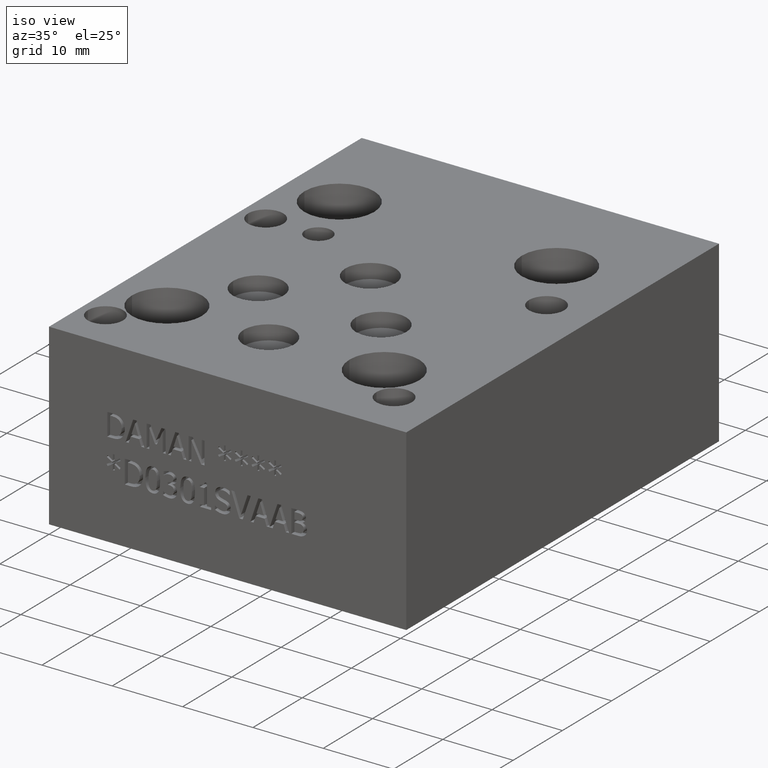
[diagram: clean part render]
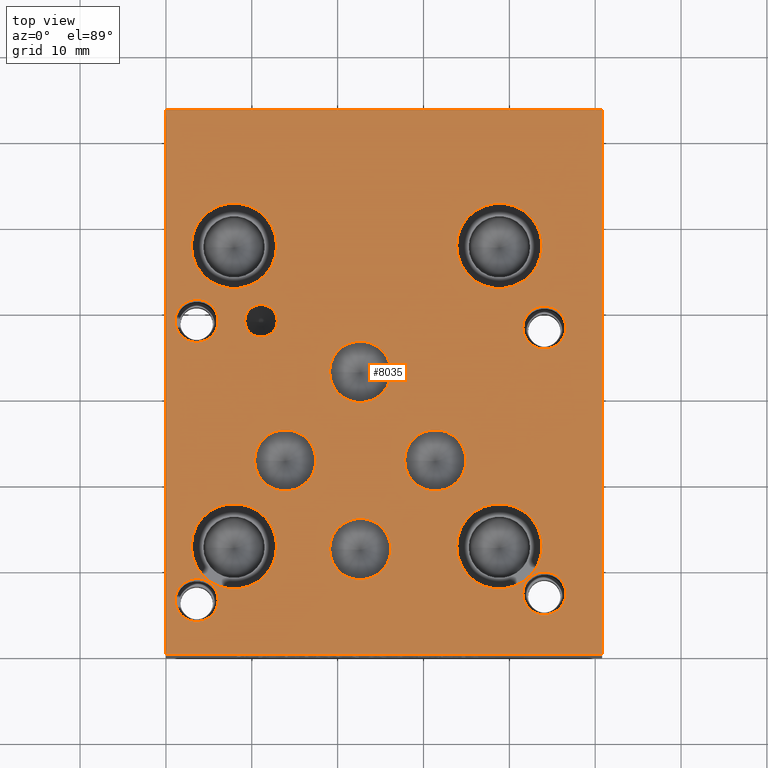
[diagram: tour spotlight — one face highlighted and labeled with its STEP entity id]
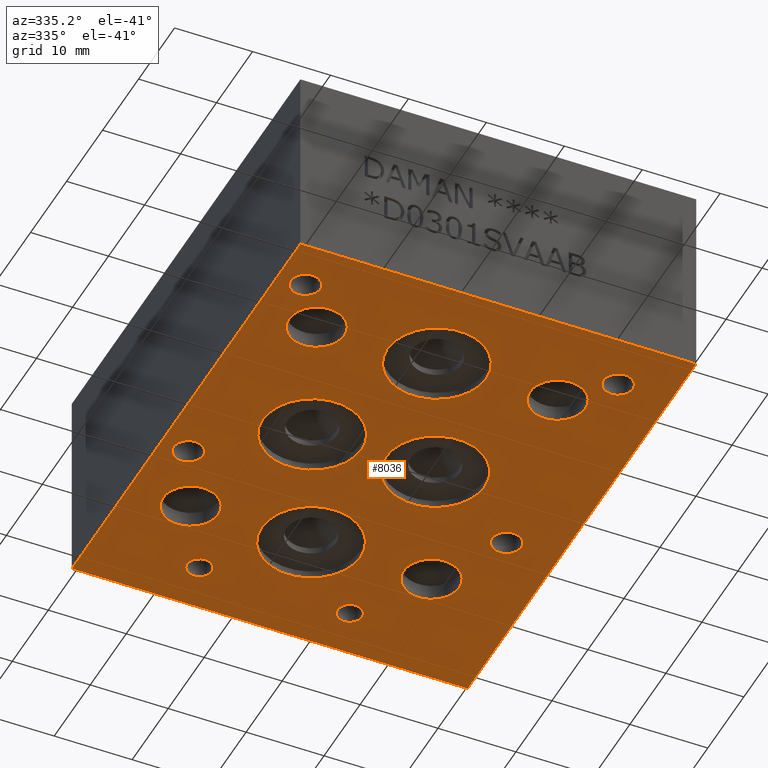
[diagram: tour spotlight — one face highlighted and labeled with its STEP entity id]
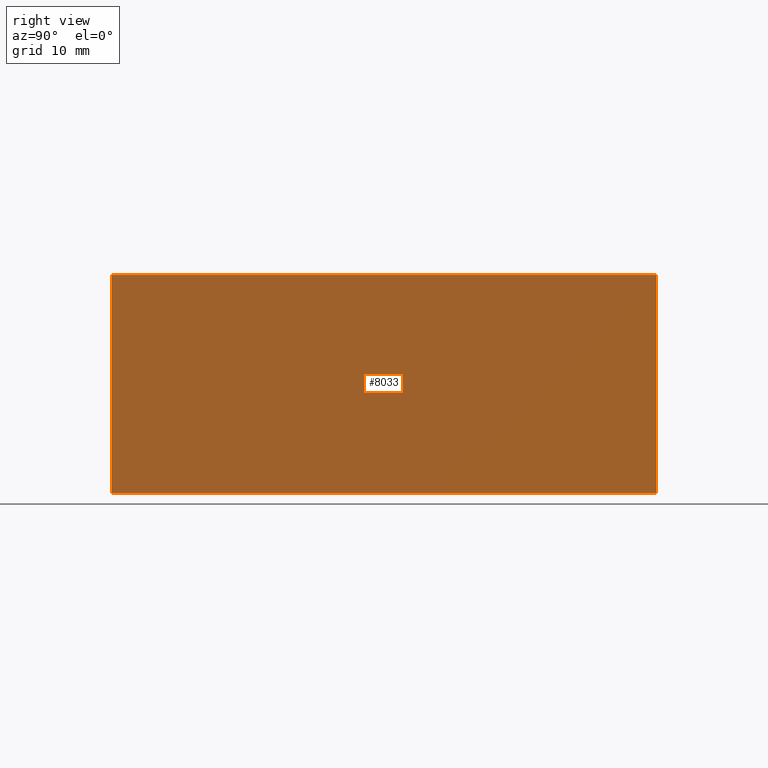
[diagram: tour spotlight — one face highlighted and labeled with its STEP entity id]
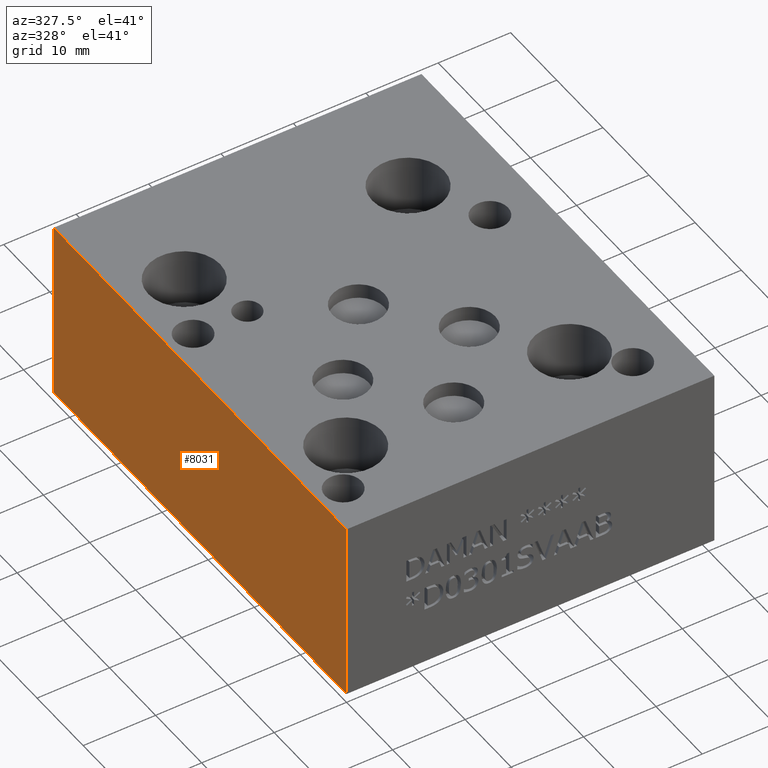
[diagram: tour spotlight — one face highlighted and labeled with its STEP entity id]
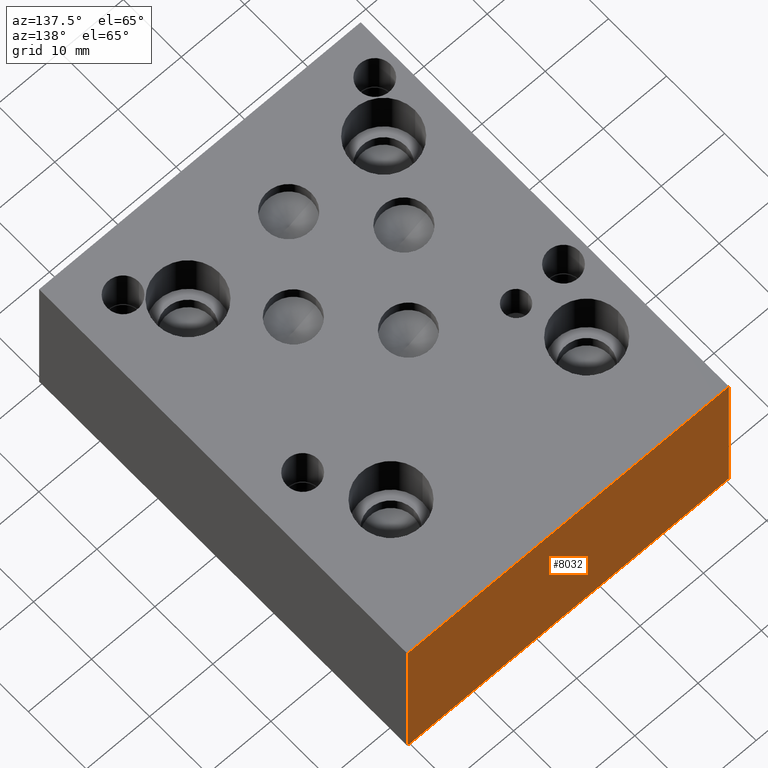
[diagram: tour spotlight — one face highlighted and labeled with its STEP entity id]
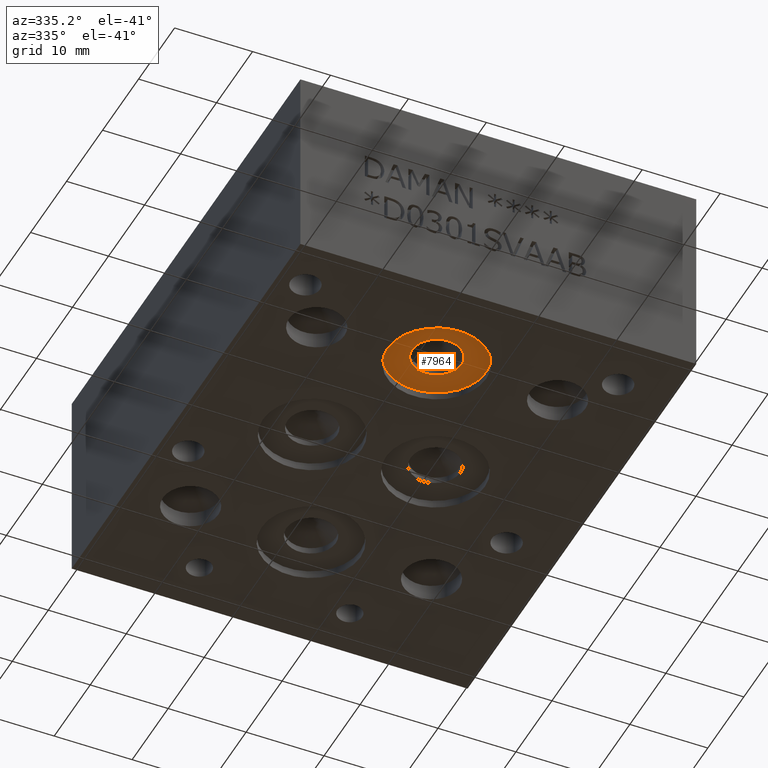
[diagram: tour spotlight — one face highlighted and labeled with its STEP entity id]
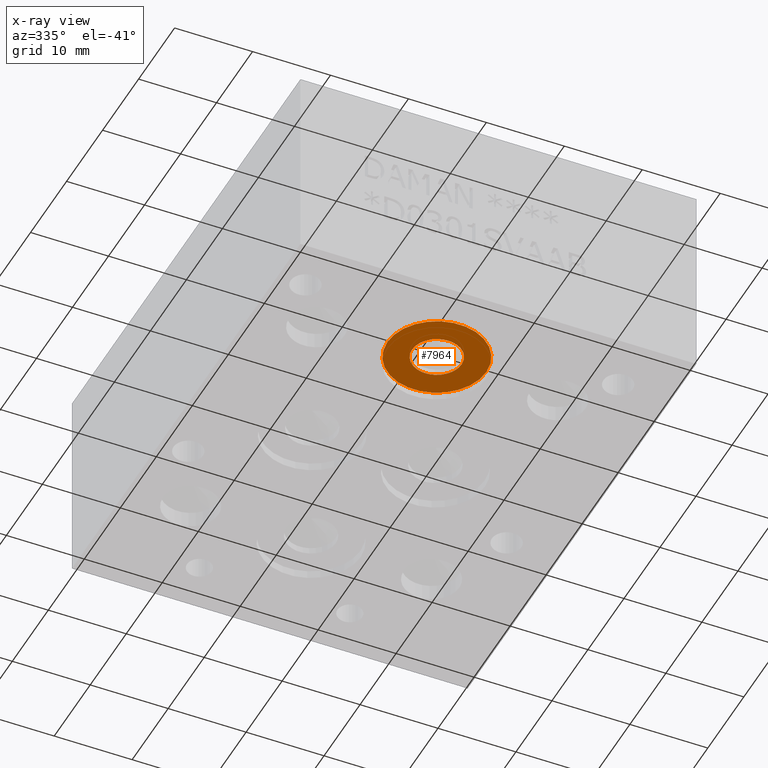
[diagram: x-ray of the same camera — body ghosted, this tour face saturated]
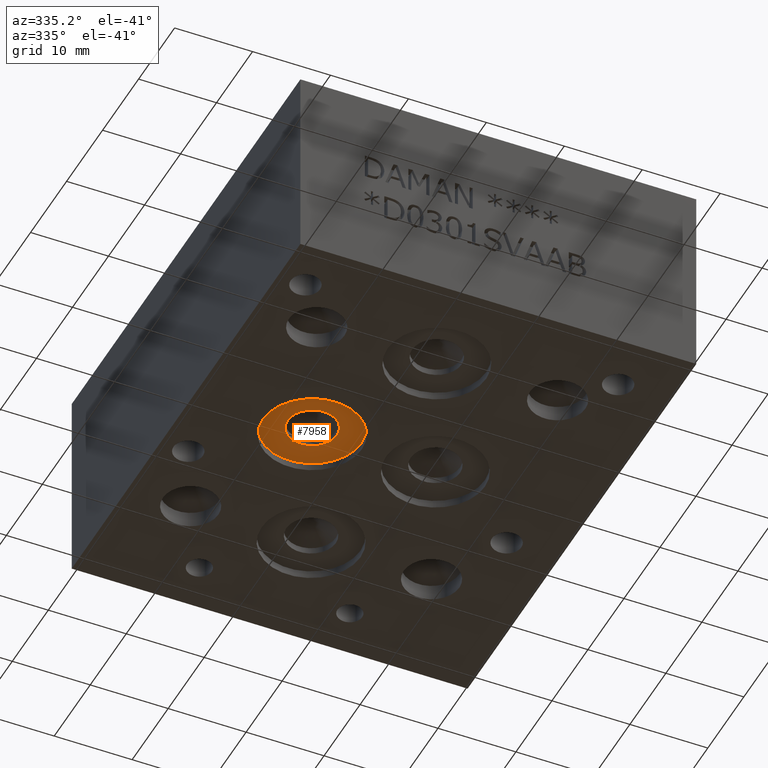
[diagram: tour spotlight — one face highlighted and labeled with its STEP entity id]
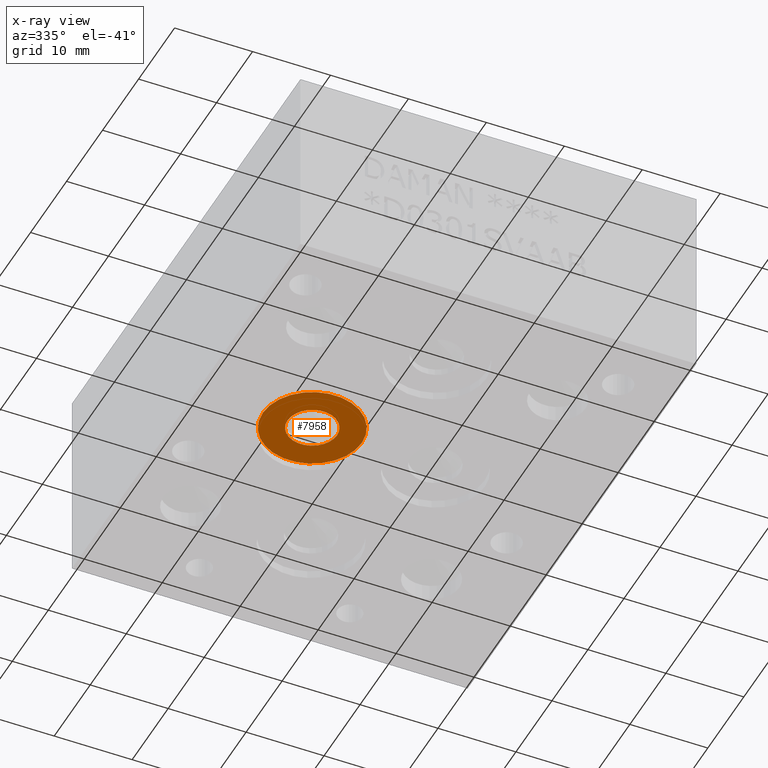
[diagram: x-ray of the same camera — body ghosted, this tour face saturated]
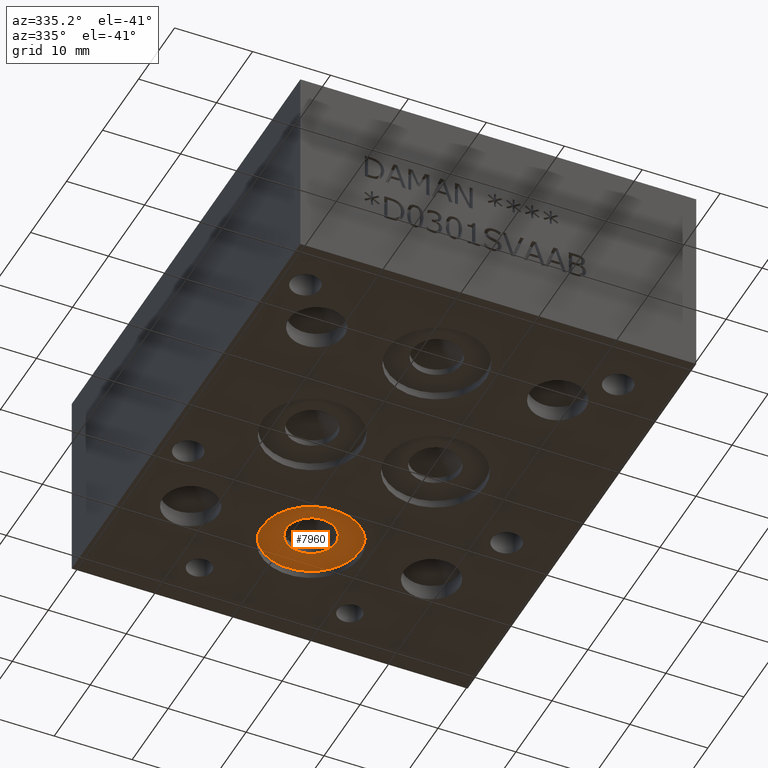
[diagram: tour spotlight — one face highlighted and labeled with its STEP entity id]
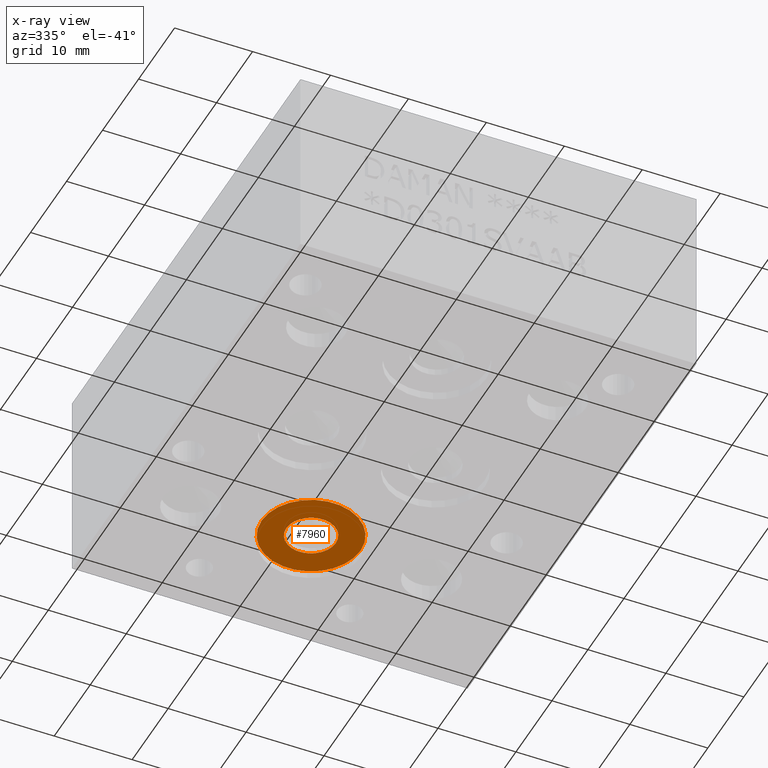
[diagram: x-ray of the same camera — body ghosted, this tour face saturated]
A machine part: a face-by-face anatomy tour. The part has 406 B-rep faces; the first image is the clean iso view, then the 8 largest visible faces are spotlighted one at a time (largest first), each with its STEP entity span.

Face 1 — top view, entity #8035. In plain terms, the highlighted planar face has unit normal (0, 0, 1).
Definition (entity closure, byte-faithful):
#94=CIRCLE('',#8375,4.9657);
#95=CIRCLE('',#8376,4.9657);
#101=CIRCLE('',#8386,4.9657);
#102=CIRCLE('',#8387,4.9657);
#108=CIRCLE('',#8397,4.9657);
#109=CIRCLE('',#8398,4.9657);
#115=CIRCLE('',#8408,4.9657);
#116=CIRCLE('',#8409,4.9657);
#119=CIRCLE('',#8415,3.5687);
#120=CIRCLE('',#8416,3.5687);
#123=CIRCLE('',#8421,3.5687);
#124=CIRCLE('',#8422,3.5687);
#127=CIRCLE('',#8427,3.5687);
#128=CIRCLE('',#8428,3.5687);
#131=CIRCLE('',#8433,3.5687);
#132=CIRCLE('',#8434,3.5687);
#135=CIRCLE('',#8439,1.8923);
#136=CIRCLE('',#8440,1.8923);
#159=CIRCLE('',#8477,2.5019);
#160=CIRCLE('',#8478,2.5019);
#163=CIRCLE('',#8483,2.5019);
#164=CIRCLE('',#8484,2.5019);
#167=CIRCLE('',#8489,2.5019);
#168=CIRCLE('',#8490,2.5019);
#171=CIRCLE('',#8495,2.5019);
#172=CIRCLE('',#8496,2.5019);
#253=FACE_BOUND('',#1402,.T.);
#254=FACE_BOUND('',#1403,.T.);
#255=FACE_BOUND('',#1404,.T.);
#256=FACE_BOUND('',#1405,.T.);
#257=FACE_BOUND('',#1406,.T.);
#258=FACE_BOUND('',#1407,.T.);
#259=FACE_BOUND('',#1408,.T.);
#260=FACE_BOUND('',#1409,.T.);
#261=FACE_BOUND('',#1410,.T.);
#262=FACE_BOUND('',#1411,.T.);
#263=FACE_BOUND('',#1412,.T.);
#264=FACE_BOUND('',#1413,.T.);
#265=FACE_BOUND('',#1414,.T.);
#954=FACE_OUTER_BOUND('',#1401,.T.);
#1401=EDGE_LOOP('',(#7002,#7003,#7004,#7005));
#1402=EDGE_LOOP('',(#7006,#7007));
#1403=EDGE_LOOP('',(#7008,#7009));
#1404=EDGE_LOOP('',(#7010,#7011));
#1405=EDGE_LOOP('',(#7012,#7013));
#1406=EDGE_LOOP('',(#7014,#7015));
#1407=EDGE_LOOP('',(#7016,#7017));
#1408=EDGE_LOOP('',(#7018,#7019));
#1409=EDGE_LOOP('',(#7020,#7021));
#1410=EDGE_LOOP('',(#7022,#7023));
#1411=EDGE_LOOP('',(#7024,#7025));
#1412=EDGE_LOOP('',(#7026,#7027));
#1413=EDGE_LOOP('',(#7028,#7029));
#1414=EDGE_LOOP('',(#7030,#7031));
#1766=LINE('',#12274,#2551);
#2208=LINE('',#13615,#2993);
#2211=LINE('',#13621,#2996);
#2214=LINE('',#13625,#2999);
#2551=VECTOR('',#9031,10.);
#2993=VECTOR('',#10177,10.);
#2996=VECTOR('',#10182,10.);
#2999=VECTOR('',#10187,10.);
#3334=VERTEX_POINT('',#12271);
#3335=VERTEX_POINT('',#12273);
#3666=VERTEX_POINT('',#13365);
#3667=VERTEX_POINT('',#13366);
#3674=VERTEX_POINT('',#13387);
#3675=VERTEX_POINT('',#13388);
#3682=VERTEX_POINT('',#13409);
#3683=VERTEX_POINT('',#13410);
#3690=VERTEX_POINT('',#13431);
#3691=VERTEX_POINT('',#13432);
#3695=VERTEX_POINT('',#13446);
#3696=VERTEX_POINT('',#13447);
#3700=VERTEX_POINT('',#13459);
#3701=VERTEX_POINT('',#13460);
#3705=VERTEX_POINT('',#13472);
#3706=VERTEX_POINT('',#13473);
#3710=VERTEX_POINT('',#13485);
#3711=VERTEX_POINT('',#13486);
#3715=VERTEX_POINT('',#13498);
#3716=VERTEX_POINT('',#13499);
#3739=VERTEX_POINT('',#13570);
#3740=VERTEX_POINT('',#13571);
#3743=VERTEX_POINT('',#13582);
#3744=VERTEX_POINT('',#13583);
#3747=VERTEX_POINT('',#13594);
#3748=VERTEX_POINT('',#13595);
#3751=VERTEX_POINT('',#13606);
#3752=VERTEX_POINT('',#13607);
#3754=VERTEX_POINT('',#13614);
#3756=VERTEX_POINT('',#13620);
#4257=EDGE_CURVE('',#3335,#3334,#1766,.T.);
#4734=EDGE_CURVE('',#3666,#3667,#94,.T.);
#4735=EDGE_CURVE('',#3667,#3666,#95,.T.);
#4744=EDGE_CURVE('',#3674,#3675,#101,.T.);
#4745=EDGE_CURVE('',#3675,#3674,#102,.T.);
#4754=EDGE_CURVE('',#3682,#3683,#108,.T.);
#4755=EDGE_CURVE('',#3683,#3682,#109,.T.);
#4764=EDGE_CURVE('',#3690,#3691,#115,.T.);
#4765=EDGE_CURVE('',#3691,#3690,#116,.T.);
#4771=EDGE_CURVE('',#3695,#3696,#119,.T.);
#4772=EDGE_CURVE('',#3696,#3695,#120,.T.);
#4777=EDGE_CURVE('',#3700,#3701,#123,.T.);
#4778=EDGE_CURVE('',#3701,#3700,#124,.T.);
#4783=EDGE_CURVE('',#3705,#3706,#127,.T.);
#4784=EDGE_CURVE('',#3706,#3705,#128,.T.);
#4789=EDGE_CURVE('',#3710,#3711,#131,.T.);
#4790=EDGE_CURVE('',#3711,#3710,#132,.T.);
#4795=EDGE_CURVE('',#3715,#3716,#135,.T.);
#4796=EDGE_CURVE('',#3716,#3715,#136,.T.);
#4829=EDGE_CURVE('',#3739,#3740,#159,.T.);
#4830=EDGE_CURVE('',#3740,#3739,#160,.T.);
#4835=EDGE_CURVE('',#3743,#3744,#163,.T.);
#4836=EDGE_CURVE('',#3744,#3743,#164,.T.);
#4841=EDGE_CURVE('',#3747,#3748,#167,.T.);
#4842=EDGE_CURVE('',#3748,#3747,#168,.T.);
#4847=EDGE_CURVE('',#3751,#3752,#171,.T.);
#4848=EDGE_CURVE('',#3752,#3751,#172,.T.);
#4851=EDGE_CURVE('',#3754,#3335,#2208,.T.);
#4854=EDGE_CURVE('',#3756,#3754,#2211,.T.);
#4857=EDGE_CURVE('',#3334,#3756,#2214,.T.);
#7002=ORIENTED_EDGE('',*,*,#4257,.T.);
#7003=ORIENTED_EDGE('',*,*,#4857,.T.);
#7004=ORIENTED_EDGE('',*,*,#4854,.T.);
#7005=ORIENTED_EDGE('',*,*,#4851,.T.);
#7006=ORIENTED_EDGE('',*,*,#4734,.T.);
#7007=ORIENTED_EDGE('',*,*,#4735,.T.);
#7008=ORIENTED_EDGE('',*,*,#4744,.T.);
#7009=ORIENTED_EDGE('',*,*,#4745,.T.);
#7010=ORIENTED_EDGE('',*,*,#4754,.T.);
#7011=ORIENTED_EDGE('',*,*,#4755,.T.);
#7012=ORIENTED_EDGE('',*,*,#4764,.T.);
#7013=ORIENTED_EDGE('',*,*,#4765,.T.);
#7014=ORIENTED_EDGE('',*,*,#4771,.T.);
#7015=ORIENTED_EDGE('',*,*,#4772,.T.);
#7016=ORIENTED_EDGE('',*,*,#4777,.T.);
#7017=ORIENTED_EDGE('',*,*,#4778,.T.);
#7018=ORIENTED_EDGE('',*,*,#4783,.T.);
#7019=ORIENTED_EDGE('',*,*,#4784,.T.);
#7020=ORIENTED_EDGE('',*,*,#4789,.T.);
#7021=ORIENTED_EDGE('',*,*,#4790,.T.);
#7022=ORIENTED_EDGE('',*,*,#4795,.T.);
#7023=ORIENTED_EDGE('',*,*,#4796,.T.);
#7024=ORIENTED_EDGE('',*,*,#4829,.T.);
#7025=ORIENTED_EDGE('',*,*,#4830,.T.);
#7026=ORIENTED_EDGE('',*,*,#4835,.T.);
#7027=ORIENTED_EDGE('',*,*,#4836,.T.);
#7028=ORIENTED_EDGE('',*,*,#4841,.T.);
#7029=ORIENTED_EDGE('',*,*,#4842,.T.);
#7030=ORIENTED_EDGE('',*,*,#4847,.T.);
#7031=ORIENTED_EDGE('',*,*,#4848,.T.);
#7312=PLANE('',#8501);
#8035=ADVANCED_FACE('',(#954,#253,#254,#255,#256,#257,#258,#259,#260,#261,
#262,#263,#264,#265),#7312,.T.);
#8375=AXIS2_PLACEMENT_3D('',#13367,#9893,#9894);
#8376=AXIS2_PLACEMENT_3D('',#13368,#9895,#9896);
#8386=AXIS2_PLACEMENT_3D('',#13389,#9918,#9919);
#8387=AXIS2_PLACEMENT_3D('',#13390,#9920,#9921);
#8397=AXIS2_PLACEMENT_3D('',#13411,#9943,#9944);
#8398=AXIS2_PLACEMENT_3D('',#13412,#9945,#9946);
#8408=AXIS2_PLACEMENT_3D('',#13433,#9968,#9969);
#8409=AXIS2_PLACEMENT_3D('',#13434,#9970,#9971);
#8415=AXIS2_PLACEMENT_3D('',#13448,#9985,#9986);
#8416=AXIS2_PLACEMENT_3D('',#13449,#9987,#9988);
#8421=AXIS2_PLACEMENT_3D('',#13461,#9999,#10000);
#8422=AXIS2_PLACEMENT_3D('',#13462,#10001,#10002);
#8427=AXIS2_PLACEMENT_3D('',#13474,#10013,#10014);
#8428=AXIS2_PLACEMENT_3D('',#13475,#10015,#10016);
#8433=AXIS2_PLACEMENT_3D('',#13487,#10027,#10028);
#8434=AXIS2_PLACEMENT_3D('',#13488,#10029,#10030);
#8439=AXIS2_PLACEMENT_3D('',#13500,#10041,#10042);
#8440=AXIS2_PLACEMENT_3D('',#13501,#10043,#10044);
#8477=AXIS2_PLACEMENT_3D('',#13572,#10127,#10128);
#8478=AXIS2_PLACEMENT_3D('',#13573,#10129,#10130);
#8483=AXIS2_PLACEMENT_3D('',#13584,#10141,#10142);
#8484=AXIS2_PLACEMENT_3D('',#13585,#10143,#10144);
#8489=AXIS2_PLACEMENT_3D('',#13596,#10155,#10156);
#8490=AXIS2_PLACEMENT_3D('',#13597,#10157,#10158);
#8495=AXIS2_PLACEMENT_3D('',#13608,#10169,#10170);
#8496=AXIS2_PLACEMENT_3D('',#13609,#10171,#10172);
#8501=AXIS2_PLACEMENT_3D('',#13627,#10190,#10191);
#9031=DIRECTION('',(1.,0.,0.));
#9893=DIRECTION('center_axis',(0.,0.,-1.));
#9894=DIRECTION('ref_axis',(1.,0.,0.));
#9895=DIRECTION('center_axis',(0.,0.,-1.));
#9896=DIRECTION('ref_axis',(1.,0.,0.));
#9918=DIRECTION('center_axis',(0.,0.,-1.));
#9919=DIRECTION('ref_axis',(1.,0.,0.));
#9920=DIRECTION('center_axis',(0.,0.,-1.));
#9921=DIRECTION('ref_axis',(1.,0.,0.));
#9943=DIRECTION('center_axis',(0.,0.,-1.));
#9944=DIRECTION('ref_axis',(1.,0.,0.));
#9945=DIRECTION('center_axis',(0.,0.,-1.));
#9946=DIRECTION('ref_axis',(1.,0.,0.));
#9968=DIRECTION('center_axis',(0.,0.,-1.));
#9969=DIRECTION('ref_axis',(1.,0.,0.));
#9970=DIRECTION('center_axis',(0.,0.,-1.));
#9971=DIRECTION('ref_axis',(1.,0.,0.));
#9985=DIRECTION('center_axis',(0.,0.,-1.));
#9986=DIRECTION('ref_axis',(1.,0.,0.));
#9987=DIRECTION('center_axis',(0.,0.,-1.));
#9988=DIRECTION('ref_axis',(1.,0.,0.));
#9999=DIRECTION('center_axis',(0.,0.,-1.));
#10000=DIRECTION('ref_axis',(1.,0.,0.));
#10001=DIRECTION('center_axis',(0.,0.,-1.));
#10002=DIRECTION('ref_axis',(1.,0.,0.));
#10013=DIRECTION('center_axis',(0.,0.,-1.));
#10014=DIRECTION('ref_axis',(1.,0.,0.));
#10015=DIRECTION('center_axis',(0.,0.,-1.));
#10016=DIRECTION('ref_axis',(1.,0.,0.));
#10027=DIRECTION('center_axis',(0.,0.,-1.));
#10028=DIRECTION('ref_axis',(1.,0.,0.));
#10029=DIRECTION('center_axis',(0.,0.,-1.));
#10030=DIRECTION('ref_axis',(1.,0.,0.));
#10041=DIRECTION('center_axis',(0.,0.,-1.));
#10042=DIRECTION('ref_axis',(1.,0.,0.));
#10043=DIRECTION('center_axis',(0.,0.,-1.));
#10044=DIRECTION('ref_axis',(1.,0.,0.));
#10127=DIRECTION('center_axis',(0.,0.,-1.));
#10128=DIRECTION('ref_axis',(1.,0.,0.));
#10129=DIRECTION('center_axis',(0.,0.,-1.));
#10130=DIRECTION('ref_axis',(1.,0.,0.));
#10141=DIRECTION('center_axis',(0.,0.,-1.));
#10142=DIRECTION('ref_axis',(1.,0.,0.));
#10143=DIRECTION('center_axis',(0.,0.,-1.));
#10144=DIRECTION('ref_axis',(1.,0.,0.));
#10155=DIRECTION('center_axis',(0.,0.,-1.));
#10156=DIRECTION('ref_axis',(1.,0.,0.));
#10157=DIRECTION('center_axis',(0.,0.,-1.));
#10158=DIRECTION('ref_axis',(1.,0.,0.));
#10169=DIRECTION('center_axis',(0.,0.,-1.));
#10170=DIRECTION('ref_axis',(1.,0.,0.));
#10171=DIRECTION('center_axis',(0.,0.,-1.));
#10172=DIRECTION('ref_axis',(1.,0.,0.));
#10177=DIRECTION('',(0.,-1.,0.));
#10182=DIRECTION('',(-1.,0.,0.));
#10187=DIRECTION('',(0.,1.,0.));
#10190=DIRECTION('center_axis',(0.,0.,1.));
#10191=DIRECTION('ref_axis',(1.,0.,0.));
#12271=CARTESIAN_POINT('',(50.8,0.,25.4));
#12273=CARTESIAN_POINT('',(0.,0.,25.4));
#12274=CARTESIAN_POINT('',(0.,0.,25.4));
#13365=CARTESIAN_POINT('',(12.8905,47.625,25.4));
#13366=CARTESIAN_POINT('',(2.9591,47.625,25.4));
#13367=CARTESIAN_POINT('Origin',(7.9248,47.625,25.4));
#13368=CARTESIAN_POINT('Origin',(7.9248,47.625,25.4));
#13387=CARTESIAN_POINT('',(12.8905,12.6238,25.4));
#13388=CARTESIAN_POINT('',(2.9591,12.6238,25.4));
#13389=CARTESIAN_POINT('Origin',(7.9248,12.6238,25.4));
#13390=CARTESIAN_POINT('Origin',(7.9248,12.6238,25.4));
#13409=CARTESIAN_POINT('',(43.8023,12.6238,25.4));
#13410=CARTESIAN_POINT('',(33.8709,12.6238,25.4));
#13411=CARTESIAN_POINT('Origin',(38.8366,12.6238,25.4));
#13412=CARTESIAN_POINT('Origin',(38.8366,12.6238,25.4));
#13431=CARTESIAN_POINT('',(43.8023,47.625,25.4));
#13432=CARTESIAN_POINT('',(33.8709,47.625,25.4));
#13433=CARTESIAN_POINT('Origin',(38.8366,47.625,25.4));
#13434=CARTESIAN_POINT('Origin',(38.8366,47.625,25.4));
#13446=CARTESIAN_POINT('',(34.9377,22.6314,25.4));
#13447=CARTESIAN_POINT('',(27.8003,22.6314,25.4));
#13448=CARTESIAN_POINT('Origin',(31.369,22.6314,25.4));
#13449=CARTESIAN_POINT('Origin',(31.369,22.6314,25.4));
#13459=CARTESIAN_POINT('',(26.2001,32.9438,25.4));
#13460=CARTESIAN_POINT('',(19.0627,32.9438,25.4));
#13461=CARTESIAN_POINT('Origin',(22.6314,32.9438,25.4));
#13462=CARTESIAN_POINT('Origin',(22.6314,32.9438,25.4));
#13472=CARTESIAN_POINT('',(26.2001,12.2936,25.4));
#13473=CARTESIAN_POINT('',(19.0627,12.2936,25.4));
#13474=CARTESIAN_POINT('Origin',(22.6314,12.2936,25.4));
#13475=CARTESIAN_POINT('Origin',(22.6314,12.2936,25.4));
#13485=CARTESIAN_POINT('',(17.4625,22.6314,25.4));
#13486=CARTESIAN_POINT('',(10.3251,22.6314,25.4));
#13487=CARTESIAN_POINT('Origin',(13.8938,22.6314,25.4));
#13488=CARTESIAN_POINT('Origin',(13.8938,22.6314,25.4));
#13498=CARTESIAN_POINT('',(12.9667,38.8874,25.4));
#13499=CARTESIAN_POINT('',(9.1821,38.8874,25.4));
#13500=CARTESIAN_POINT('Origin',(11.0744,38.8874,25.4));
#13501=CARTESIAN_POINT('Origin',(11.0744,38.8874,25.4));
#13570=CARTESIAN_POINT('',(6.0833,6.35,25.4));
#13571=CARTESIAN_POINT('',(1.0795,6.35,25.4));
#13572=CARTESIAN_POINT('Origin',(3.5814,6.35,25.4));
#13573=CARTESIAN_POINT('Origin',(3.5814,6.35,25.4));
#13582=CARTESIAN_POINT('',(46.5709,38.1,25.4));
#13583=CARTESIAN_POINT('',(41.5671,38.1,25.4));
#13584=CARTESIAN_POINT('Origin',(44.069,38.1,25.4));
#13585=CARTESIAN_POINT('Origin',(44.069,38.1,25.4));
#13594=CARTESIAN_POINT('',(46.5709,7.1374,25.4));
#13595=CARTESIAN_POINT('',(41.5671,7.1374,25.4));
#13596=CARTESIAN_POINT('Origin',(44.069,7.1374,25.4));
#13597=CARTESIAN_POINT('Origin',(44.069,7.1374,25.4));
#13606=CARTESIAN_POINT('',(6.0833,38.8874,25.4));
#13607=CARTESIAN_POINT('',(1.0795,38.8874,25.4));
#13608=CARTESIAN_POINT('Origin',(3.5814,38.8874,25.4));
#13609=CARTESIAN_POINT('Origin',(3.5814,38.8874,25.4));
#13614=CARTESIAN_POINT('',(0.,63.5,25.4));
#13615=CARTESIAN_POINT('',(0.,63.5,25.4));
#13620=CARTESIAN_POINT('',(50.8,63.5,25.4));
#13621=CARTESIAN_POINT('',(50.8,63.5,25.4));
#13625=CARTESIAN_POINT('',(50.8,0.,25.4));
#13627=CARTESIAN_POINT('Origin',(25.4,31.75,25.4));

Face 2 — auxiliary view, entity #8036. In plain terms, the highlighted planar face has unit normal (0, 0, 1).
Definition (entity closure, byte-faithful):
#37=CIRCLE('',#8288,6.35);
#38=CIRCLE('',#8289,6.35);
#42=CIRCLE('',#8295,6.35);
#43=CIRCLE('',#8296,6.35);
#47=CIRCLE('',#8302,6.35);
#48=CIRCLE('',#8303,6.35);
#52=CIRCLE('',#8309,6.35);
#53=CIRCLE('',#8310,6.35);
#59=CIRCLE('',#8319,1.5875);
#60=CIRCLE('',#8320,1.5875);
#63=CIRCLE('',#8325,1.5875);
#64=CIRCLE('',#8326,1.5875);
#75=CIRCLE('',#8347,3.5687);
#76=CIRCLE('',#8348,3.5687);
#79=CIRCLE('',#8353,3.5687);
#80=CIRCLE('',#8354,3.5687);
#83=CIRCLE('',#8359,3.5687);
#84=CIRCLE('',#8360,3.5687);
#87=CIRCLE('',#8365,3.5687);
#88=CIRCLE('',#8366,3.5687);
#141=CIRCLE('',#8448,1.8923);
#146=CIRCLE('',#8456,1.8923);
#151=CIRCLE('',#8464,1.8923);
#156=CIRCLE('',#8472,1.8923);
#266=FACE_BOUND('',#1416,.T.);
#267=FACE_BOUND('',#1417,.T.);
#268=FACE_BOUND('',#1418,.T.);
#269=FACE_BOUND('',#1419,.T.);
#270=FACE_BOUND('',#1420,.T.);
#271=FACE_BOUND('',#1421,.T.);
#272=FACE_BOUND('',#1422,.T.);
#273=FACE_BOUND('',#1423,.T.);
#274=FACE_BOUND('',#1424,.T.);
#275=FACE_BOUND('',#1425,.T.);
#276=FACE_BOUND('',#1426,.T.);
#277=FACE_BOUND('',#1427,.T.);
#278=FACE_BOUND('',#1428,.T.);
#279=FACE_BOUND('',#1429,.T.);
#955=FACE_OUTER_BOUND('',#1415,.T.);
#1415=EDGE_LOOP('',(#7032,#7033,#7034,#7035));
#1416=EDGE_LOOP('',(#7036,#7037));
#1417=EDGE_LOOP('',(#7038,#7039));
#1418=EDGE_LOOP('',(#7040,#7041));
#1419=EDGE_LOOP('',(#7042,#7043));
#1420=EDGE_LOOP('',(#7044,#7045));
#1421=EDGE_LOOP('',(#7046,#7047));
#1422=EDGE_LOOP('',(#7048,#7049));
#1423=EDGE_LOOP('',(#7050,#7051));
#1424=EDGE_LOOP('',(#7052,#7053));
#1425=EDGE_LOOP('',(#7054,#7055));
#1426=EDGE_LOOP('',(#7056));
#1427=EDGE_LOOP('',(#7057));
#1428=EDGE_LOOP('',(#7058));
#1429=EDGE_LOOP('',(#7059));
#1764=LINE('',#12270,#2549);
#2207=LINE('',#13613,#2992);
#2210=LINE('',#13619,#2995);
#2213=LINE('',#13624,#2998);
#2549=VECTOR('',#9029,10.);
#2992=VECTOR('',#10176,10.);
#2995=VECTOR('',#10181,10.);
#2998=VECTOR('',#10186,10.);
#3332=VERTEX_POINT('',#12268);
#3333=VERTEX_POINT('',#12269);
#3598=VERTEX_POINT('',#13185);
#3599=VERTEX_POINT('',#13186);
#3603=VERTEX_POINT('',#13198);
#3604=VERTEX_POINT('',#13199);
#3608=VERTEX_POINT('',#13211);
#3609=VERTEX_POINT('',#13212);
#3613=VERTEX_POINT('',#13224);
#3614=VERTEX_POINT('',#13225);
#3621=VERTEX_POINT('',#13244);
#3622=VERTEX_POINT('',#13245);
#3626=VERTEX_POINT('',#13257);
#3627=VERTEX_POINT('',#13258);
#3643=VERTEX_POINT('',#13306);
#3644=VERTEX_POINT('',#13307);
#3648=VERTEX_POINT('',#13319);
#3649=VERTEX_POINT('',#13320);
#3653=VERTEX_POINT('',#13332);
#3654=VERTEX_POINT('',#13333);
#3658=VERTEX_POINT('',#13345);
#3659=VERTEX_POINT('',#13346);
#3721=VERTEX_POINT('',#13515);
#3726=VERTEX_POINT('',#13530);
#3731=VERTEX_POINT('',#13545);
#3736=VERTEX_POINT('',#13560);
#3753=VERTEX_POINT('',#13612);
#3755=VERTEX_POINT('',#13618);
#4255=EDGE_CURVE('',#3332,#3333,#1764,.T.);
#4652=EDGE_CURVE('',#3598,#3599,#37,.T.);
#4653=EDGE_CURVE('',#3599,#3598,#38,.T.);
#4658=EDGE_CURVE('',#3603,#3604,#42,.T.);
#4659=EDGE_CURVE('',#3604,#3603,#43,.T.);
#4664=EDGE_CURVE('',#3608,#3609,#47,.T.);
#4665=EDGE_CURVE('',#3609,#3608,#48,.T.);
#4670=EDGE_CURVE('',#3613,#3614,#52,.T.);
#4671=EDGE_CURVE('',#3614,#3613,#53,.T.);
#4679=EDGE_CURVE('',#3621,#3622,#59,.T.);
#4680=EDGE_CURVE('',#3622,#3621,#60,.T.);
#4685=EDGE_CURVE('',#3626,#3627,#63,.T.);
#4686=EDGE_CURVE('',#3627,#3626,#64,.T.);
#4707=EDGE_CURVE('',#3643,#3644,#75,.T.);
#4708=EDGE_CURVE('',#3644,#3643,#76,.T.);
#4713=EDGE_CURVE('',#3648,#3649,#79,.T.);
#4714=EDGE_CURVE('',#3649,#3648,#80,.T.);
#4719=EDGE_CURVE('',#3653,#3654,#83,.T.);
#4720=EDGE_CURVE('',#3654,#3653,#84,.T.);
#4725=EDGE_CURVE('',#3658,#3659,#87,.T.);
#4726=EDGE_CURVE('',#3659,#3658,#88,.T.);
#4804=EDGE_CURVE('',#3721,#3721,#141,.T.);
#4811=EDGE_CURVE('',#3726,#3726,#146,.T.);
#4818=EDGE_CURVE('',#3731,#3731,#151,.T.);
#4825=EDGE_CURVE('',#3736,#3736,#156,.T.);
#4850=EDGE_CURVE('',#3753,#3332,#2207,.T.);
#4853=EDGE_CURVE('',#3755,#3753,#2210,.T.);
#4856=EDGE_CURVE('',#3333,#3755,#2213,.T.);
#7032=ORIENTED_EDGE('',*,*,#4255,.F.);
#7033=ORIENTED_EDGE('',*,*,#4850,.F.);
#7034=ORIENTED_EDGE('',*,*,#4853,.F.);
#7035=ORIENTED_EDGE('',*,*,#4856,.F.);
#7036=ORIENTED_EDGE('',*,*,#4652,.T.);
#7037=ORIENTED_EDGE('',*,*,#4653,.T.);
#7038=ORIENTED_EDGE('',*,*,#4658,.T.);
#7039=ORIENTED_EDGE('',*,*,#4659,.T.);
#7040=ORIENTED_EDGE('',*,*,#4664,.T.);
#7041=ORIENTED_EDGE('',*,*,#4665,.T.);
#7042=ORIENTED_EDGE('',*,*,#4670,.T.);
#7043=ORIENTED_EDGE('',*,*,#4671,.T.);
#7044=ORIENTED_EDGE('',*,*,#4679,.T.);
#7045=ORIENTED_EDGE('',*,*,#4680,.T.);
#7046=ORIENTED_EDGE('',*,*,#4685,.T.);
#7047=ORIENTED_EDGE('',*,*,#4686,.T.);
#7048=ORIENTED_EDGE('',*,*,#4707,.T.);
#7049=ORIENTED_EDGE('',*,*,#4708,.T.);
#7050=ORIENTED_EDGE('',*,*,#4713,.T.);
#7051=ORIENTED_EDGE('',*,*,#4714,.T.);
#7052=ORIENTED_EDGE('',*,*,#4719,.T.);
#7053=ORIENTED_EDGE('',*,*,#4720,.T.);
#7054=ORIENTED_EDGE('',*,*,#4725,.T.);
#7055=ORIENTED_EDGE('',*,*,#4726,.T.);
#7056=ORIENTED_EDGE('',*,*,#4804,.T.);
#7057=ORIENTED_EDGE('',*,*,#4811,.T.);
#7058=ORIENTED_EDGE('',*,*,#4818,.T.);
#7059=ORIENTED_EDGE('',*,*,#4825,.T.);
#7313=PLANE('',#8502);
#8036=ADVANCED_FACE('',(#955,#266,#267,#268,#269,#270,#271,#272,#273,#274,
#275,#276,#277,#278,#279),#7313,.F.);
#8288=AXIS2_PLACEMENT_3D('',#13187,#9694,#9695);
#8289=AXIS2_PLACEMENT_3D('',#13188,#9696,#9697);
#8295=AXIS2_PLACEMENT_3D('',#13200,#9709,#9710);
#8296=AXIS2_PLACEMENT_3D('',#13201,#9711,#9712);
#8302=AXIS2_PLACEMENT_3D('',#13213,#9724,#9725);
#8303=AXIS2_PLACEMENT_3D('',#13214,#9726,#9727);
#8309=AXIS2_PLACEMENT_3D('',#13226,#9739,#9740);
#8310=AXIS2_PLACEMENT_3D('',#13227,#9741,#9742);
#8319=AXIS2_PLACEMENT_3D('',#13246,#9761,#9762);
#8320=AXIS2_PLACEMENT_3D('',#13247,#9763,#9764);
#8325=AXIS2_PLACEMENT_3D('',#13259,#9775,#9776);
#8326=AXIS2_PLACEMENT_3D('',#13260,#9777,#9778);
#8347=AXIS2_PLACEMENT_3D('',#13308,#9829,#9830);
#8348=AXIS2_PLACEMENT_3D('',#13309,#9831,#9832);
#8353=AXIS2_PLACEMENT_3D('',#13321,#9843,#9844);
#8354=AXIS2_PLACEMENT_3D('',#13322,#9845,#9846);
#8359=AXIS2_PLACEMENT_3D('',#13334,#9857,#9858);
#8360=AXIS2_PLACEMENT_3D('',#13335,#9859,#9860);
#8365=AXIS2_PLACEMENT_3D('',#13347,#9871,#9872);
#8366=AXIS2_PLACEMENT_3D('',#13348,#9873,#9874);
#8448=AXIS2_PLACEMENT_3D('',#13517,#10062,#10063);
#8456=AXIS2_PLACEMENT_3D('',#13532,#10080,#10081);
#8464=AXIS2_PLACEMENT_3D('',#13547,#10098,#10099);
#8472=AXIS2_PLACEMENT_3D('',#13562,#10116,#10117);
#8502=AXIS2_PLACEMENT_3D('',#13628,#10192,#10193);
#9029=DIRECTION('',(1.,0.,0.));
#9694=DIRECTION('center_axis',(0.,0.,1.));
#9695=DIRECTION('ref_axis',(1.,0.,0.));
#9696=DIRECTION('center_axis',(0.,0.,1.));
#9697=DIRECTION('ref_axis',(1.,0.,0.));
#9709=DIRECTION('center_axis',(0.,0.,1.));
#9710=DIRECTION('ref_axis',(1.,0.,0.));
#9711=DIRECTION('center_axis',(0.,0.,1.));
#9712=DIRECTION('ref_axis',(1.,0.,0.));
#9724=DIRECTION('center_axis',(0.,0.,1.));
#9725=DIRECTION('ref_axis',(1.,0.,0.));
#9726=DIRECTION('center_axis',(0.,0.,1.));
#9727=DIRECTION('ref_axis',(1.,0.,0.));
#9739=DIRECTION('center_axis',(0.,0.,1.));
#9740=DIRECTION('ref_axis',(1.,0.,0.));
#9741=DIRECTION('center_axis',(0.,0.,1.));
#9742=DIRECTION('ref_axis',(1.,0.,0.));
#9761=DIRECTION('center_axis',(0.,0.,1.));
#9762=DIRECTION('ref_axis',(1.,0.,0.));
#9763=DIRECTION('center_axis',(0.,0.,1.));
#9764=DIRECTION('ref_axis',(1.,0.,0.));
#9775=DIRECTION('center_axis',(0.,0.,1.));
#9776=DIRECTION('ref_axis',(1.,0.,0.));
#9777=DIRECTION('center_axis',(0.,0.,1.));
#9778=DIRECTION('ref_axis',(1.,0.,0.));
#9829=DIRECTION('center_axis',(0.,0.,1.));
#9830=DIRECTION('ref_axis',(1.,0.,0.));
#9831=DIRECTION('center_axis',(0.,0.,1.));
#9832=DIRECTION('ref_axis',(1.,0.,0.));
#9843=DIRECTION('center_axis',(0.,0.,1.));
#9844=DIRECTION('ref_axis',(1.,0.,0.));
#9845=DIRECTION('center_axis',(0.,0.,1.));
#9846=DIRECTION('ref_axis',(1.,0.,0.));
#9857=DIRECTION('center_axis',(0.,0.,1.));
#9858=DIRECTION('ref_axis',(1.,0.,0.));
#9859=DIRECTION('center_axis',(0.,0.,1.));
#9860=DIRECTION('ref_axis',(1.,0.,0.));
#9871=DIRECTION('center_axis',(0.,0.,1.));
#9872=DIRECTION('ref_axis',(1.,0.,0.));
#9873=DIRECTION('center_axis',(0.,0.,1.));
#9874=DIRECTION('ref_axis',(1.,0.,0.));
#10062=DIRECTION('center_axis',(0.,0.,1.));
#10063=DIRECTION('ref_axis',(1.,0.,0.));
#10080=DIRECTION('center_axis',(0.,0.,1.));
#10081=DIRECTION('ref_axis',(1.,0.,0.));
#10098=DIRECTION('center_axis',(0.,0.,1.));
#10099=DIRECTION('ref_axis',(1.,0.,0.));
#10116=DIRECTION('center_axis',(0.,0.,1.));
#10117=DIRECTION('ref_axis',(1.,0.,0.));
#10176=DIRECTION('',(0.,-1.,0.));
#10181=DIRECTION('',(-1.,0.,0.));
#10186=DIRECTION('',(0.,1.,0.));
#10192=DIRECTION('center_axis',(0.,0.,1.));
#10193=DIRECTION('ref_axis',(1.,0.,0.));
#12268=CARTESIAN_POINT('',(0.,0.,0.));
#12269=CARTESIAN_POINT('',(50.8,0.,0.));
#12270=CARTESIAN_POINT('',(0.,0.,0.));
#13185=CARTESIAN_POINT('',(21.7932,30.1244,0.));
#13186=CARTESIAN_POINT('',(9.0932,30.1244,0.));
#13187=CARTESIAN_POINT('Origin',(15.4432,30.1244,0.));
#13188=CARTESIAN_POINT('Origin',(15.4432,30.1244,0.));
#13198=CARTESIAN_POINT('',(29.6926,47.5488,0.));
#13199=CARTESIAN_POINT('',(16.9926,47.5488,0.));
#13200=CARTESIAN_POINT('Origin',(23.3426,47.5488,0.));
#13201=CARTESIAN_POINT('Origin',(23.3426,47.5488,0.));
#13211=CARTESIAN_POINT('',(37.592,30.1244,0.));
#13212=CARTESIAN_POINT('',(24.892,30.1244,0.));
#13213=CARTESIAN_POINT('Origin',(31.242,30.1244,0.));
#13214=CARTESIAN_POINT('Origin',(31.242,30.1244,0.));
#13224=CARTESIAN_POINT('',(29.6926,12.6238,0.));
#13225=CARTESIAN_POINT('',(16.9926,12.6238,0.));
#13226=CARTESIAN_POINT('Origin',(23.3426,12.6238,0.));
#13227=CARTESIAN_POINT('Origin',(23.3426,12.6238,0.));
#13244=CARTESIAN_POINT('',(34.3281,57.1246,0.));
#13245=CARTESIAN_POINT('',(31.1531,57.1246,0.));
#13246=CARTESIAN_POINT('Origin',(32.7406,57.1246,0.));
#13247=CARTESIAN_POINT('Origin',(32.7406,57.1246,0.));
#13257=CARTESIAN_POINT('',(15.0241,57.1246,0.));
#13258=CARTESIAN_POINT('',(11.8491,57.1246,0.));
#13259=CARTESIAN_POINT('Origin',(13.4366,57.1246,0.));
#13260=CARTESIAN_POINT('Origin',(13.4366,57.1246,0.));
#13306=CARTESIAN_POINT('',(42.4053,47.625,0.));
#13307=CARTESIAN_POINT('',(35.2679,47.625,0.));
#13308=CARTESIAN_POINT('Origin',(38.8366,47.625,0.));
#13309=CARTESIAN_POINT('Origin',(38.8366,47.625,0.));
#13319=CARTESIAN_POINT('',(42.4053,12.6238,0.));
#13320=CARTESIAN_POINT('',(35.2679,12.6238,0.));
#13321=CARTESIAN_POINT('Origin',(38.8366,12.6238,0.));
#13322=CARTESIAN_POINT('Origin',(38.8366,12.6238,0.));
#13332=CARTESIAN_POINT('',(11.4935,12.6238,0.));
#13333=CARTESIAN_POINT('',(4.3561,12.6238,0.));
#13334=CARTESIAN_POINT('Origin',(7.9248,12.6238,0.));
#13335=CARTESIAN_POINT('Origin',(7.9248,12.6238,0.));
#13345=CARTESIAN_POINT('',(11.4935,47.625,0.));
#13346=CARTESIAN_POINT('',(4.3561,47.625,0.));
#13347=CARTESIAN_POINT('Origin',(7.9248,47.625,0.));
#13348=CARTESIAN_POINT('Origin',(7.9248,47.625,0.));
#13515=CARTESIAN_POINT('',(1.6891,6.35,0.));
#13517=CARTESIAN_POINT('Origin',(3.5814,6.35,0.));
#13530=CARTESIAN_POINT('',(42.1767,38.1,0.));
#13532=CARTESIAN_POINT('Origin',(44.069,38.1,0.));
#13545=CARTESIAN_POINT('',(42.1767,7.1374,0.));
#13547=CARTESIAN_POINT('Origin',(44.069,7.1374,0.));
#13560=CARTESIAN_POINT('',(1.6891,38.8874,0.));
#13562=CARTESIAN_POINT('Origin',(3.5814,38.8874,0.));
#13612=CARTESIAN_POINT('',(0.,63.5,0.));
#13613=CARTESIAN_POINT('',(0.,63.5,0.));
#13618=CARTESIAN_POINT('',(50.8,63.5,0.));
#13619=CARTESIAN_POINT('',(50.8,63.5,0.));
#13624=CARTESIAN_POINT('',(50.8,0.,0.));
#13628=CARTESIAN_POINT('Origin',(25.4,31.75,0.));

Face 3 — right view, entity #8033. In plain terms, the highlighted planar face has unit normal (1, 0, 0).
Definition (entity closure, byte-faithful):
#952=FACE_OUTER_BOUND('',#1399,.T.);
#1399=EDGE_LOOP('',(#6995,#6996,#6997,#6998));
#1765=LINE('',#12272,#2550);
#2212=LINE('',#13622,#2997);
#2213=LINE('',#13624,#2998);
#2214=LINE('',#13625,#2999);
#2550=VECTOR('',#9030,10.);
#2997=VECTOR('',#10183,10.);
#2998=VECTOR('',#10186,10.);
#2999=VECTOR('',#10187,10.);
#3333=VERTEX_POINT('',#12269);
#3334=VERTEX_POINT('',#12271);
#3755=VERTEX_POINT('',#13618);
#3756=VERTEX_POINT('',#13620);
#4256=EDGE_CURVE('',#3333,#3334,#1765,.T.);
#4855=EDGE_CURVE('',#3755,#3756,#2212,.T.);
#4856=EDGE_CURVE('',#3333,#3755,#2213,.T.);
#4857=EDGE_CURVE('',#3334,#3756,#2214,.T.);
#6995=ORIENTED_EDGE('',*,*,#4856,.T.);
#6996=ORIENTED_EDGE('',*,*,#4855,.T.);
#6997=ORIENTED_EDGE('',*,*,#4857,.F.);
#6998=ORIENTED_EDGE('',*,*,#4256,.F.);
#7310=PLANE('',#8499);
#8033=ADVANCED_FACE('',(#952),#7310,.T.);
#8499=AXIS2_PLACEMENT_3D('',#13623,#10184,#10185);
#9030=DIRECTION('',(0.,0.,1.));
#10183=DIRECTION('',(0.,0.,1.));
#10184=DIRECTION('center_axis',(1.,0.,0.));
#10185=DIRECTION('ref_axis',(0.,1.,0.));
#10186=DIRECTION('',(0.,1.,0.));
#10187=DIRECTION('',(0.,1.,0.));
#12269=CARTESIAN_POINT('',(50.8,0.,0.));
#12271=CARTESIAN_POINT('',(50.8,0.,25.4));
#12272=CARTESIAN_POINT('',(50.8,0.,0.));
#13618=CARTESIAN_POINT('',(50.8,63.5,0.));
#13620=CARTESIAN_POINT('',(50.8,63.5,25.4));
#13622=CARTESIAN_POINT('',(50.8,63.5,0.));
#13623=CARTESIAN_POINT('Origin',(50.8,0.,0.));
#13624=CARTESIAN_POINT('',(50.8,0.,0.));
#13625=CARTESIAN_POINT('',(50.8,0.,25.4));

Face 4 — auxiliary view, entity #8031. In plain terms, the highlighted planar face has unit normal (-1, 0, 0).
Definition (entity closure, byte-faithful):
#950=FACE_OUTER_BOUND('',#1397,.T.);
#1397=EDGE_LOOP('',(#6987,#6988,#6989,#6990));
#1767=LINE('',#12275,#2552);
#2207=LINE('',#13613,#2992);
#2208=LINE('',#13615,#2993);
#2209=LINE('',#13616,#2994);
#2552=VECTOR('',#9032,10.);
#2992=VECTOR('',#10176,10.);
#2993=VECTOR('',#10177,10.);
#2994=VECTOR('',#10178,10.);
#3332=VERTEX_POINT('',#12268);
#3335=VERTEX_POINT('',#12273);
#3753=VERTEX_POINT('',#13612);
#3754=VERTEX_POINT('',#13614);
#4258=EDGE_CURVE('',#3332,#3335,#1767,.T.);
#4850=EDGE_CURVE('',#3753,#3332,#2207,.T.);
#4851=EDGE_CURVE('',#3754,#3335,#2208,.T.);
#4852=EDGE_CURVE('',#3753,#3754,#2209,.T.);
#6987=ORIENTED_EDGE('',*,*,#4850,.T.);
#6988=ORIENTED_EDGE('',*,*,#4258,.T.);
#6989=ORIENTED_EDGE('',*,*,#4851,.F.);
#6990=ORIENTED_EDGE('',*,*,#4852,.F.);
#7308=PLANE('',#8497);
#8031=ADVANCED_FACE('',(#950),#7308,.T.);
#8497=AXIS2_PLACEMENT_3D('',#13611,#10174,#10175);
#9032=DIRECTION('',(0.,0.,1.));
#10174=DIRECTION('center_axis',(-1.,0.,0.));
#10175=DIRECTION('ref_axis',(0.,-1.,0.));
#10176=DIRECTION('',(0.,-1.,0.));
#10177=DIRECTION('',(0.,-1.,0.));
#10178=DIRECTION('',(0.,0.,1.));
#12268=CARTESIAN_POINT('',(0.,0.,0.));
#12273=CARTESIAN_POINT('',(0.,0.,25.4));
#12275=CARTESIAN_POINT('',(0.,0.,0.));
#13611=CARTESIAN_POINT('Origin',(0.,63.5,0.));
#13612=CARTESIAN_POINT('',(0.,63.5,0.));
#13613=CARTESIAN_POINT('',(0.,63.5,0.));
#13614=CARTESIAN_POINT('',(0.,63.5,25.4));
#13615=CARTESIAN_POINT('',(0.,63.5,25.4));
#13616=CARTESIAN_POINT('',(0.,63.5,0.));

Face 5 — auxiliary view, entity #8032. In plain terms, the highlighted planar face has unit normal (0, 1, 0).
Definition (entity closure, byte-faithful):
#951=FACE_OUTER_BOUND('',#1398,.T.);
#1398=EDGE_LOOP('',(#6991,#6992,#6993,#6994));
#2209=LINE('',#13616,#2994);
#2210=LINE('',#13619,#2995);
#2211=LINE('',#13621,#2996);
#2212=LINE('',#13622,#2997);
#2994=VECTOR('',#10178,10.);
#2995=VECTOR('',#10181,10.);
#2996=VECTOR('',#10182,10.);
#2997=VECTOR('',#10183,10.);
#3753=VERTEX_POINT('',#13612);
#3754=VERTEX_POINT('',#13614);
#3755=VERTEX_POINT('',#13618);
#3756=VERTEX_POINT('',#13620);
#4852=EDGE_CURVE('',#3753,#3754,#2209,.T.);
#4853=EDGE_CURVE('',#3755,#3753,#2210,.T.);
#4854=EDGE_CURVE('',#3756,#3754,#2211,.T.);
#4855=EDGE_CURVE('',#3755,#3756,#2212,.T.);
#6991=ORIENTED_EDGE('',*,*,#4853,.T.);
#6992=ORIENTED_EDGE('',*,*,#4852,.T.);
#6993=ORIENTED_EDGE('',*,*,#4854,.F.);
#6994=ORIENTED_EDGE('',*,*,#4855,.F.);
#7309=PLANE('',#8498);
#8032=ADVANCED_FACE('',(#951),#7309,.T.);
#8498=AXIS2_PLACEMENT_3D('',#13617,#10179,#10180);
#10178=DIRECTION('',(0.,0.,1.));
#10179=DIRECTION('center_axis',(0.,1.,0.));
#10180=DIRECTION('ref_axis',(-1.,0.,0.));
#10181=DIRECTION('',(-1.,0.,0.));
#10182=DIRECTION('',(-1.,0.,0.));
#10183=DIRECTION('',(0.,0.,1.));
#13612=CARTESIAN_POINT('',(0.,63.5,0.));
#13614=CARTESIAN_POINT('',(0.,63.5,25.4));
#13616=CARTESIAN_POINT('',(0.,63.5,0.));
#13617=CARTESIAN_POINT('Origin',(50.8,63.5,0.));
#13618=CARTESIAN_POINT('',(50.8,63.5,0.));
#13619=CARTESIAN_POINT('',(50.8,63.5,0.));
#13620=CARTESIAN_POINT('',(50.8,63.5,25.4));
#13621=CARTESIAN_POINT('',(50.8,63.5,25.4));
#13622=CARTESIAN_POINT('',(50.8,63.5,0.));

Face 6 — auxiliary view, entity #7964. An x-ray twin of the same camera follows (body ghosted, this face saturated) — the face is partly hidden behind the body. In plain terms, the highlighted planar face has unit normal (0, 0, -1).
Definition (entity closure, byte-faithful):
#54=CIRCLE('',#8311,6.35);
#55=CIRCLE('',#8312,6.35);
#56=CIRCLE('',#8314,3.175);
#244=FACE_BOUND('',#1322,.T.);
#883=FACE_OUTER_BOUND('',#1321,.T.);
#1321=EDGE_LOOP('',(#6674,#6675));
#1322=EDGE_LOOP('',(#6676));
#3615=VERTEX_POINT('',#13228);
#3616=VERTEX_POINT('',#13230);
#3617=VERTEX_POINT('',#13234);
#4673=EDGE_CURVE('',#3616,#3615,#54,.T.);
#4674=EDGE_CURVE('',#3615,#3616,#55,.T.);
#4675=EDGE_CURVE('',#3617,#3617,#56,.T.);
#6674=ORIENTED_EDGE('',*,*,#4673,.T.);
#6675=ORIENTED_EDGE('',*,*,#4674,.T.);
#6676=ORIENTED_EDGE('',*,*,#4675,.F.);
#7299=PLANE('',#8313);
#7964=ADVANCED_FACE('',(#883,#244),#7299,.T.);
#8311=AXIS2_PLACEMENT_3D('',#13231,#9744,#9745);
#8312=AXIS2_PLACEMENT_3D('',#13232,#9746,#9747);
#8313=AXIS2_PLACEMENT_3D('',#13233,#9748,#9749);
#8314=AXIS2_PLACEMENT_3D('',#13235,#9750,#9751);
#9744=DIRECTION('center_axis',(0.,0.,-1.));
#9745=DIRECTION('ref_axis',(1.,0.,0.));
#9746=DIRECTION('center_axis',(0.,0.,-1.));
#9747=DIRECTION('ref_axis',(1.,0.,0.));
#9748=DIRECTION('center_axis',(0.,0.,-1.));
#9749=DIRECTION('ref_axis',(1.,0.,0.));
#9750=DIRECTION('center_axis',(0.,0.,-1.));
#9751=DIRECTION('ref_axis',(1.,0.,0.));
#13228=CARTESIAN_POINT('',(16.9926,12.6238,1.016));
#13230=CARTESIAN_POINT('',(29.6926,12.6238,1.016));
#13231=CARTESIAN_POINT('Origin',(23.3426,12.6238,1.016));
#13232=CARTESIAN_POINT('Origin',(23.3426,12.6238,1.016));
#13233=CARTESIAN_POINT('Origin',(23.3426,12.6238,1.016));
#13234=CARTESIAN_POINT('',(20.1676,12.6238,1.016));
#13235=CARTESIAN_POINT('Origin',(23.3426,12.6238,1.016));

Face 7 — auxiliary view, entity #7958. An x-ray twin of the same camera follows (body ghosted, this face saturated) — the face is partly hidden behind the body. In plain terms, the highlighted planar face has unit normal (0, 0, -1).
Definition (entity closure, byte-faithful):
#39=CIRCLE('',#8290,6.35);
#40=CIRCLE('',#8291,6.35);
#41=CIRCLE('',#8293,3.175);
#241=FACE_BOUND('',#1313,.T.);
#877=FACE_OUTER_BOUND('',#1312,.T.);
#1312=EDGE_LOOP('',(#6647,#6648));
#1313=EDGE_LOOP('',(#6649));
#3600=VERTEX_POINT('',#13189);
#3601=VERTEX_POINT('',#13191);
#3602=VERTEX_POINT('',#13195);
#4655=EDGE_CURVE('',#3601,#3600,#39,.T.);
#4656=EDGE_CURVE('',#3600,#3601,#40,.T.);
#4657=EDGE_CURVE('',#3602,#3602,#41,.T.);
#6647=ORIENTED_EDGE('',*,*,#4655,.T.);
#6648=ORIENTED_EDGE('',*,*,#4656,.T.);
#6649=ORIENTED_EDGE('',*,*,#4657,.F.);
#7296=PLANE('',#8292);
#7958=ADVANCED_FACE('',(#877,#241),#7296,.T.);
#8290=AXIS2_PLACEMENT_3D('',#13192,#9699,#9700);
#8291=AXIS2_PLACEMENT_3D('',#13193,#9701,#9702);
#8292=AXIS2_PLACEMENT_3D('',#13194,#9703,#9704);
#8293=AXIS2_PLACEMENT_3D('',#13196,#9705,#9706);
#9699=DIRECTION('center_axis',(0.,0.,-1.));
#9700=DIRECTION('ref_axis',(1.,0.,0.));
#9701=DIRECTION('center_axis',(0.,0.,-1.));
#9702=DIRECTION('ref_axis',(1.,0.,0.));
#9703=DIRECTION('center_axis',(0.,0.,-1.));
#9704=DIRECTION('ref_axis',(1.,0.,0.));
#9705=DIRECTION('center_axis',(0.,0.,-1.));
#9706=DIRECTION('ref_axis',(1.,0.,0.));
#13189=CARTESIAN_POINT('',(9.0932,30.1244,1.016));
#13191=CARTESIAN_POINT('',(21.7932,30.1244,1.016));
#13192=CARTESIAN_POINT('Origin',(15.4432,30.1244,1.016));
#13193=CARTESIAN_POINT('Origin',(15.4432,30.1244,1.016));
#13194=CARTESIAN_POINT('Origin',(15.4432,30.1244,1.016));
#13195=CARTESIAN_POINT('',(12.2682,30.1244,1.016));
#13196=CARTESIAN_POINT('Origin',(15.4432,30.1244,1.016));

Face 8 — auxiliary view, entity #7960. An x-ray twin of the same camera follows (body ghosted, this face saturated) — the face is partly hidden behind the body. In plain terms, the highlighted planar face has unit normal (0, 0, -1).
Definition (entity closure, byte-faithful):
#44=CIRCLE('',#8297,6.35);
#45=CIRCLE('',#8298,6.35);
#46=CIRCLE('',#8300,3.175);
#242=FACE_BOUND('',#1316,.T.);
#879=FACE_OUTER_BOUND('',#1315,.T.);
#1315=EDGE_LOOP('',(#6656,#6657));
#1316=EDGE_LOOP('',(#6658));
#3605=VERTEX_POINT('',#13202);
#3606=VERTEX_POINT('',#13204);
#3607=VERTEX_POINT('',#13208);
#4661=EDGE_CURVE('',#3606,#3605,#44,.T.);
#4662=EDGE_CURVE('',#3605,#3606,#45,.T.);
#4663=EDGE_CURVE('',#3607,#3607,#46,.T.);
#6656=ORIENTED_EDGE('',*,*,#4661,.T.);
#6657=ORIENTED_EDGE('',*,*,#4662,.T.);
#6658=ORIENTED_EDGE('',*,*,#4663,.F.);
#7297=PLANE('',#8299);
#7960=ADVANCED_FACE('',(#879,#242),#7297,.T.);
#8297=AXIS2_PLACEMENT_3D('',#13205,#9714,#9715);
#8298=AXIS2_PLACEMENT_3D('',#13206,#9716,#9717);
#8299=AXIS2_PLACEMENT_3D('',#13207,#9718,#9719);
#8300=AXIS2_PLACEMENT_3D('',#13209,#9720,#9721);
#9714=DIRECTION('center_axis',(0.,0.,-1.));
#9715=DIRECTION('ref_axis',(1.,0.,0.));
#9716=DIRECTION('center_axis',(0.,0.,-1.));
#9717=DIRECTION('ref_axis',(1.,0.,0.));
#9718=DIRECTION('center_axis',(0.,0.,-1.));
#9719=DIRECTION('ref_axis',(1.,0.,0.));
#9720=DIRECTION('center_axis',(0.,0.,-1.));
#9721=DIRECTION('ref_axis',(1.,0.,0.));
#13202=CARTESIAN_POINT('',(16.9926,47.5488,1.016));
#13204=CARTESIAN_POINT('',(29.6926,47.5488,1.016));
#13205=CARTESIAN_POINT('Origin',(23.3426,47.5488,1.016));
#13206=CARTESIAN_POINT('Origin',(23.3426,47.5488,1.016));
#13207=CARTESIAN_POINT('Origin',(23.3426,47.5488,1.016));
#13208=CARTESIAN_POINT('',(20.1676,47.5488,1.016));
#13209=CARTESIAN_POINT('Origin',(23.3426,47.5488,1.016));